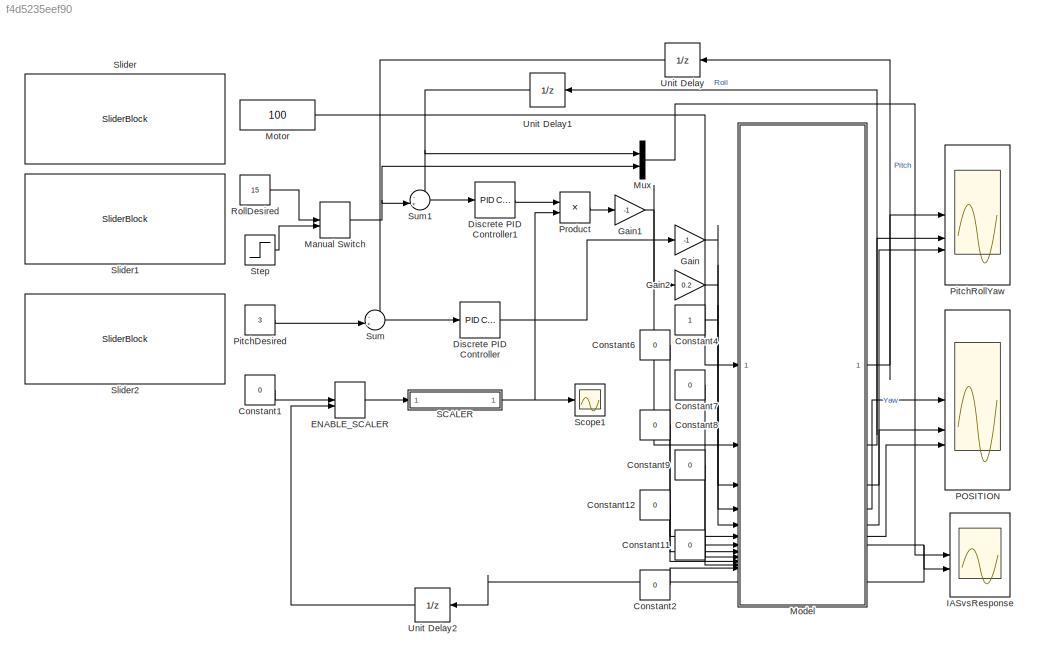
MODEL slx_f4d5235eef90
KIND model
CONFIG AbsTol = auto
CONFIG EnableMultiTasking = off
CONFIG FixedStep = auto
CONFIG MaxStep = auto
CONFIG MinStep = auto
CONFIG RelTol = 1e-3
CONFIG SampleTimeConstraint = Unconstrained
CONFIG SolverName = VariableStepAuto
CONFIG StartTime = 0.0
CONFIG StopTime = 100
BLOCK [Constant] Constant1
  OutDataTypeStr = double
  SampleTime = -1
  Value = 0
BLOCK [Constant] Constant11
  OutDataTypeStr = uint8
  SampleTime = -1
  Value = 0
BLOCK [Constant] Constant12
  OutDataTypeStr = uint8
  SampleTime = -1
  Value = 0
BLOCK [Constant] Constant2
  OutDataTypeStr = boolean
  SampleTime = -1
  Value = 0
BLOCK [Constant] Constant4
  OutDataTypeStr = boolean
  SampleTime = -1
BLOCK [Constant] Constant6
  OutDataTypeStr = double
  SampleTime = -1
  Value = 0
BLOCK [Constant] Constant7
  OutDataTypeStr = int32
  SampleTime = -1
  Value = 0
BLOCK [Constant] Constant8
  OutDataTypeStr = int32
  SampleTime = -1
  Value = 0
BLOCK [Constant] Constant9
  OutDataTypeStr = single
  SampleTime = -1
  Value = 0
BLOCK [Reference] Discrete PID Controller  REF=slpidlib/PID Controller
  LibrarySourceBlock = simulink/Discrete/Discrete PID Controller
  SourceBlock = slpidlib/PID Controller
  SourceType = PID 1dof
BLOCK [Reference] Discrete PID Controller1  REF=slpidlib/PID Controller
  LibrarySourceBlock = simulink/Discrete/Discrete PID Controller
  SourceBlock = slpidlib/PID Controller
  SourceType = PID 1dof
BLOCK [ManualSwitch] ENABLE_SCALER
  CurrentSetting = 0
BLOCK [Gain] Gain
  Gain = -1
BLOCK [Gain] Gain1
  Gain = -1
BLOCK [Gain] Gain2
  Gain = 0.2
BLOCK [Scope] IASvsResponse
  Floating = off
  NumInputPorts = 2
  ScopeSpecificationString = Simulink.scopes.TimeScopeBlockCfg('CurrentConfiguration', extmgr.ConfigurationSet(extmgr.Configuration('Core','General UI',true),extmgr.Configuration('Core','Source UI',true),extmgr.Configuration('Sources','WiredSimulink',true,'DataLoggingVariableName','ScopeData1'),extmgr.Configuration('Visuals','Time Domain',true,'SerializedDisplays',{struct('MinYLimReal','-2.27519','MaxYLimReal','20.47667','YLa...<+2030ch>
BLOCK [ManualSwitch] Manual Switch
  CurrentSetting = 0
BLOCK [ModelReference] Model
  ModelNameDialog = PlaneSimulationModel_withSensors_r17.slx
  ModelReferenceVersion = 11.15
BLOCK [Constant] Motor
  OutDataTypeStr = double
  SampleTime = -1
  Value = 100
BLOCK [Mux] Mux
  DisplayOption = bar
  Inputs = 2
BLOCK [Scope] POSITION
  Floating = off
  NumInputPorts = 3
  ScopeSpecificationString = Simulink.scopes.TimeScopeBlockCfg('CurrentConfiguration', extmgr.ConfigurationSet(extmgr.Configuration('Core','General UI',true),extmgr.Configuration('Core','Source UI',true),extmgr.Configuration('Sources','WiredSimulink',true,'DataLoggingVariableName','ScopeData1'),extmgr.Configuration('Visuals','Time Domain',true,'SerializedDisplays',{struct('MinYLimReal','-1.47991','MaxYLimReal','13.31922','YLa...<+2676ch>
BLOCK [Constant] PitchDesired
  OutDataTypeStr = double
  SampleTime = -1
  Value = 3
BLOCK [Scope] PitchRollYaw
  Floating = off
  NumInputPorts = 3
  ScopeSpecificationString = Simulink.scopes.TimeScopeBlockCfg('CurrentConfiguration', extmgr.ConfigurationSet(extmgr.Configuration('Core','General UI',true),extmgr.Configuration('Core','Source UI',true),extmgr.Configuration('Sources','WiredSimulink',true),extmgr.Configuration('Visuals','Time Domain',true,'SerializedDisplays',{struct('MinYLimReal','0.68551','MaxYLimReal','8.37078','YLabelReal','','MinYLimMag','0.68551','MaxYL...<+2704ch>
BLOCK [Product] Product
BLOCK [Constant] RollDesired
  OutDataTypeStr = double
  SampleTime = -1
  Value = 15
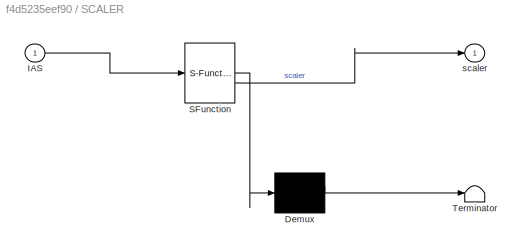
BLOCK [SubSystem] SCALER 
  ErrorFcn = Stateflow.Translate.translate
  LibrarySourceBlock = simulink/User-Defined\nFunctions/MATLAB Function
  PermitHierarchicalResolution = ExplicitOnly
  SFBlockType = MATLAB Function
  TreatAsAtomicUnit = on
BLOCK [Demux] SCALER / Demux 
  Outputs = 1
BLOCK [S-Function] SCALER / SFunction 
  EnableBusSupport = on
  FunctionName = sf_sfun
  PortCounts = [1 2]
  SFcnIsStateOwnerBlock = off
  SFunctionDeploymentMode = off
  Tag = Stateflow S-Function 2
BLOCK [Terminator] SCALER / Terminator 
BLOCK [Inport] SCALER /IAS
BLOCK [Outport] SCALER /scaler
BLOCK [Scope] Scope1
  Floating = off
  NumInputPorts = 1
  ScopeSpecificationString = Simulink.scopes.TimeScopeBlockCfg('CurrentConfiguration', extmgr.ConfigurationSet(extmgr.Configuration('Core','General UI',true),extmgr.Configuration('Core','Source UI',true),extmgr.Configuration('Sources','WiredSimulink',true,'DataLoggingVariableName','ScopeData3'),extmgr.Configuration('Visuals','Time Domain',true,'SerializedDisplays',{struct('MinYLimReal','0.74447','MaxYLimReal','1.41027','YLabe...<+1364ch>
BLOCK [SliderBlock] Slider
BLOCK [SliderBlock] Slider1
  ScaleMax = 30
  ScaleMin = -30
BLOCK [SliderBlock] Slider2
  ScaleMax = 20
  ScaleMin = -20
BLOCK [Step] Step
  After = 15
  SampleTime = 0.0025
  Time = 50
BLOCK [Sum] Sum
  Inputs = -+|
BLOCK [Sum] Sum1
  Inputs = -+|
BLOCK [UnitDelay] Unit Delay
  HasFrameUpgradeWarning = on
  SampleTime = -1
BLOCK [UnitDelay] Unit Delay1
  HasFrameUpgradeWarning = on
  SampleTime = -1
BLOCK [UnitDelay] Unit Delay2
  HasFrameUpgradeWarning = on
  SampleTime = -1
LINE Constant11:1 -> Model:11
LINE Constant12:1 -> Model:10
LINE Constant1:1 -> ENABLE_SCALER:1
LINE Constant2:1 -> Model:12
LINE Constant4:1 -> Model:5
LINE Constant6:1 -> Model:6
LINE Constant7:1 -> Model:7
LINE Constant8:1 -> Model:8
LINE Constant9:1 -> Model:9
LINE Discrete PID Controller1:1 -> Product:1
LINE Discrete PID Controller:1 -> Gain:1
LINE ENABLE_SCALER:1 -> SCALER :1
NET Gain1:1 -> Gain2:1, Model:2
LINE Gain2:1 -> Model:4
LINE Gain:1 -> Model:3
NET Manual Switch:1 -> Mux:2, Sum1:2
NET Model:1 -> PitchRollYaw:1, Unit Delay:1
NET Model:2 -> PitchRollYaw:2, Unit Delay1:1
LINE Model:3 -> PitchRollYaw:3
LINE Model:4 -> POSITION:1
LINE Model:5 -> POSITION:2
LINE Model:6 -> POSITION:3
NET Model:7 -> IASvsResponse:2, Unit Delay2:1
LINE Motor:1 -> Model:1
LINE Mux:1 -> IASvsResponse:1
LINE PitchDesired:1 -> Sum:2
LINE Product:1 -> Gain1:1
LINE RollDesired:1 -> Manual Switch:1
NET SCALER :1 -> Product:2, Scope1:1
LINE Step:1 -> Manual Switch:2
LINE Sum1:1 -> Discrete PID Controller1:1
LINE Sum:1 -> Discrete PID Controller:1
NET Unit Delay1:1 -> Mux:1, Sum1:1
LINE Unit Delay2:1 -> ENABLE_SCALER:2
LINE Unit Delay:1 -> Sum:1
note: NET lines group one-source signal fan-out (src -> all destinations, sorted); 1:1 wires keep LINE
CHART SCALER  states=1 transitions=1
  STATE_LABEL 'eML_blk_kernel()'
  STATE_LABEL 'SCRIPT:\nfunction scaler = fcn(IAS)\nIAS_min = 17;\nIAS_max = 30;\n\nIAS_mid = (IAS_min + IAS_max)/2;\nif(IAS>0)\n    scaler = IAS_mid/IAS;\nelse\n    scaler = 1;\nend\n\n%scaler = scaler * scaler;'
CHART  states=0 transitions=0
